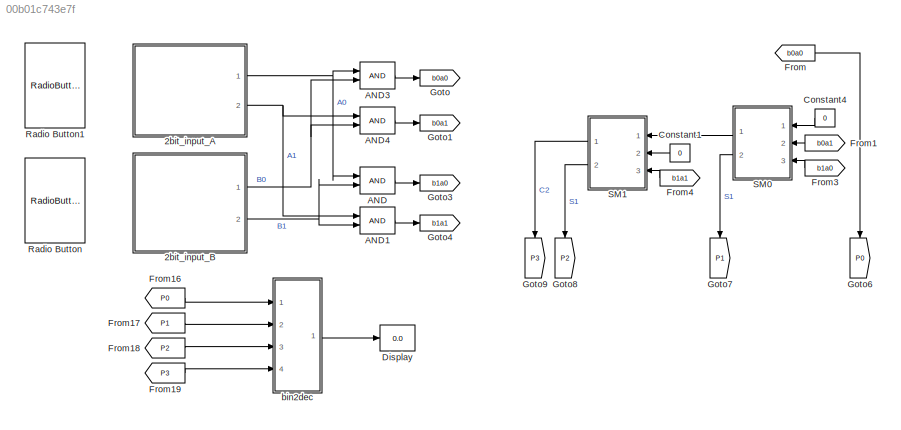
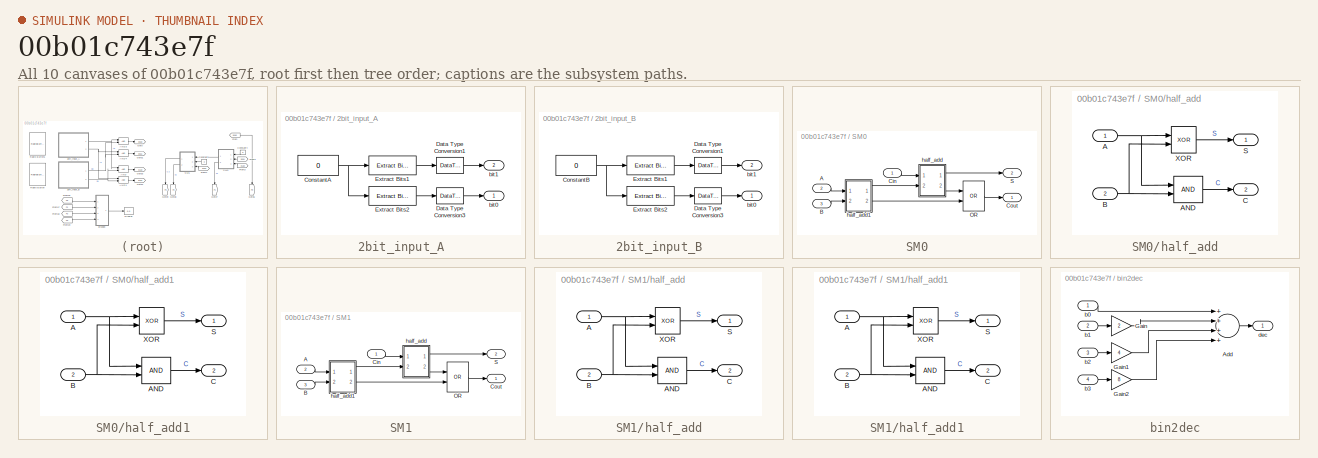
[diagram: thumbnail index - all 10 canvases of the model, root first then tree order]
MODEL slx_00b01c743e7f
KIND model
CONFIG AbsTol = auto
CONFIG EnableMultiTasking = off
CONFIG FixedStep = 1
CONFIG MaxStep = 1
CONFIG MinStep = auto
CONFIG RelTol = 1e-3
CONFIG SampleTimeConstraint = Unconstrained
CONFIG Solver = FixedStepAuto
CONFIG SolverName = FixedStepAuto
CONFIG StartTime = 0.0
CONFIG StopTime = inf
BLOCK [SubSystem] 2bit_input_A
  Ports = [0, 2]
  RequestExecContextInheritance = off
BLOCK [Constant] 2bit_input_A/ConstantA
  OutDataTypeStr = uint8
  OutMax = 3
  OutMin = 0
  Value = 0
BLOCK [DataTypeConversion] 2bit_input_A/Data Type Conversion1
  OutDataTypeStr = boolean
  RndMeth = Floor
  SaturateOnIntegerOverflow = off
BLOCK [DataTypeConversion] 2bit_input_A/Data Type Conversion3
  OutDataTypeStr = boolean
  RndMeth = Floor
  SaturateOnIntegerOverflow = off
BLOCK [Reference] 2bit_input_A/Extract Bits1  REF=simulink/Logic and Bit
Operations/Extract Bits
  Ports = [1, 1]
  SourceBlock = simulink/Logic and Bit\nOperations/Extract Bits
  SourceProductBaseCode = SL
  SourceProductName = Simulink
  SourceType = Extract Bits
BLOCK [Reference] 2bit_input_A/Extract Bits2  REF=simulink/Logic and Bit
Operations/Extract Bits
  Ports = [1, 1]
  SourceBlock = simulink/Logic and Bit\nOperations/Extract Bits
  SourceProductBaseCode = SL
  SourceProductName = Simulink
  SourceType = Extract Bits
BLOCK [Outport] 2bit_input_A/bit0
  IconDisplay = Port number
BLOCK [Outport] 2bit_input_A/bit1
  IconDisplay = Port number
  Port = 2
BLOCK [SubSystem] 2bit_input_B
  Ports = [0, 2]
  RequestExecContextInheritance = off
BLOCK [Constant] 2bit_input_B/ConstantB
  OutDataTypeStr = uint8
  OutMax = 3
  OutMin = 0
  Value = 0
BLOCK [DataTypeConversion] 2bit_input_B/Data Type Conversion1
  OutDataTypeStr = boolean
  RndMeth = Floor
  SaturateOnIntegerOverflow = off
BLOCK [DataTypeConversion] 2bit_input_B/Data Type Conversion3
  OutDataTypeStr = boolean
  RndMeth = Floor
  SaturateOnIntegerOverflow = off
BLOCK [Reference] 2bit_input_B/Extract Bits1  REF=simulink/Logic and Bit
Operations/Extract Bits
  Ports = [1, 1]
  SourceBlock = simulink/Logic and Bit\nOperations/Extract Bits
  SourceProductBaseCode = SL
  SourceProductName = Simulink
  SourceType = Extract Bits
BLOCK [Reference] 2bit_input_B/Extract Bits2  REF=simulink/Logic and Bit
Operations/Extract Bits
  Ports = [1, 1]
  SourceBlock = simulink/Logic and Bit\nOperations/Extract Bits
  SourceProductBaseCode = SL
  SourceProductName = Simulink
  SourceType = Extract Bits
BLOCK [Outport] 2bit_input_B/bit0
  IconDisplay = Port number
BLOCK [Outport] 2bit_input_B/bit1
  IconDisplay = Port number
  Port = 2
BLOCK [Logic] AND
  AllPortsSameDT = off
  OutDataTypeStr = boolean
  Ports = [2, 1]
BLOCK [Logic] AND1
  AllPortsSameDT = off
  OutDataTypeStr = boolean
  Ports = [2, 1]
BLOCK [Logic] AND3
  AllPortsSameDT = off
  OutDataTypeStr = boolean
  Ports = [2, 1]
BLOCK [Logic] AND4
  AllPortsSameDT = off
  OutDataTypeStr = boolean
  Ports = [2, 1]
BLOCK [Constant] Constant1
  OutDataTypeStr = boolean
  Value = 0
BLOCK [Constant] Constant4
  OutDataTypeStr = boolean
  Value = 0
BLOCK [Display] Display
  Decimation = 1
  Ports = [1]
BLOCK [From] From
  GotoTag = b0a0
BLOCK [From] From1
  GotoTag = b0a1
BLOCK [From] From16
  GotoTag = P0
BLOCK [From] From17
  GotoTag = P1
BLOCK [From] From18
  GotoTag = P2
BLOCK [From] From19
  GotoTag = P3
BLOCK [From] From3
  GotoTag = b1a0
BLOCK [From] From4
  GotoTag = b1a1
BLOCK [Goto] Goto
  GotoTag = b0a0
BLOCK [Goto] Goto1
  GotoTag = b0a1
BLOCK [Goto] Goto3
  GotoTag = b1a0
BLOCK [Goto] Goto4
  GotoTag = b1a1
BLOCK [Goto] Goto6
  GotoTag = P0
BLOCK [Goto] Goto7
  GotoTag = P1
BLOCK [Goto] Goto8
  GotoTag = P2
BLOCK [Goto] Goto9
  GotoTag = P3
BLOCK [RadioButtonGroup] Radio Button
  SelectedLabel = 0
BLOCK [RadioButtonGroup] Radio Button1
  SelectedLabel = 0
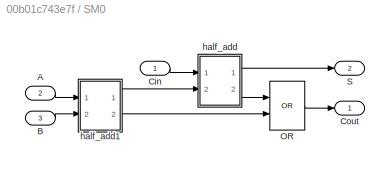
BLOCK [SubSystem] SM0
  Ports = [3, 2]
  RequestExecContextInheritance = off
BLOCK [Inport] SM0/A
  IconDisplay = Port number
  Port = 2
BLOCK [Inport] SM0/B
  IconDisplay = Port number
  Port = 3
BLOCK [Inport] SM0/Cin
  IconDisplay = Port number
BLOCK [Outport] SM0/Cout
  IconDisplay = Port number
BLOCK [Logic] SM0/OR
  AllPortsSameDT = off
  Operator = OR
  OutDataTypeStr = boolean
  Ports = [2, 1]
BLOCK [Outport] SM0/S
  IconDisplay = Port number
  Port = 2
BLOCK [SubSystem] SM0/half_add
  Ports = [2, 2]
  RequestExecContextInheritance = off
BLOCK [Inport] SM0/half_add/A
  IconDisplay = Port number
BLOCK [Logic] SM0/half_add/AND
  AllPortsSameDT = off
  IconShape = distinctive
  OutDataTypeStr = boolean
  Ports = [2, 1]
BLOCK [Inport] SM0/half_add/B
  IconDisplay = Port number
  Port = 2
BLOCK [Outport] SM0/half_add/C
  IconDisplay = Port number
  Port = 2
BLOCK [Outport] SM0/half_add/S
  IconDisplay = Port number
BLOCK [Logic] SM0/half_add/XOR
  AllPortsSameDT = off
  IconShape = distinctive
  Operator = XOR
  OutDataTypeStr = boolean
  Ports = [2, 1]
BLOCK [SubSystem] SM0/half_add1
  Ports = [2, 2]
  RequestExecContextInheritance = off
BLOCK [Inport] SM0/half_add1/A
  IconDisplay = Port number
BLOCK [Logic] SM0/half_add1/AND
  AllPortsSameDT = off
  IconShape = distinctive
  OutDataTypeStr = boolean
  Ports = [2, 1]
BLOCK [Inport] SM0/half_add1/B
  IconDisplay = Port number
  Port = 2
BLOCK [Outport] SM0/half_add1/C
  IconDisplay = Port number
  Port = 2
BLOCK [Outport] SM0/half_add1/S
  IconDisplay = Port number
BLOCK [Logic] SM0/half_add1/XOR
  AllPortsSameDT = off
  IconShape = distinctive
  Operator = XOR
  OutDataTypeStr = boolean
  Ports = [2, 1]
BLOCK [SubSystem] SM1
  Ports = [3, 2]
  RequestExecContextInheritance = off
BLOCK [Inport] SM1/A
  IconDisplay = Port number
  Port = 2
BLOCK [Inport] SM1/B
  IconDisplay = Port number
  Port = 3
BLOCK [Inport] SM1/Cin
  IconDisplay = Port number
BLOCK [Outport] SM1/Cout
  IconDisplay = Port number
BLOCK [Logic] SM1/OR
  AllPortsSameDT = off
  Operator = OR
  OutDataTypeStr = boolean
  Ports = [2, 1]
BLOCK [Outport] SM1/S
  IconDisplay = Port number
  Port = 2
BLOCK [SubSystem] SM1/half_add
  Ports = [2, 2]
  RequestExecContextInheritance = off
BLOCK [Inport] SM1/half_add/A
  IconDisplay = Port number
BLOCK [Logic] SM1/half_add/AND
  AllPortsSameDT = off
  IconShape = distinctive
  OutDataTypeStr = boolean
  Ports = [2, 1]
BLOCK [Inport] SM1/half_add/B
  IconDisplay = Port number
  Port = 2
BLOCK [Outport] SM1/half_add/C
  IconDisplay = Port number
  Port = 2
BLOCK [Outport] SM1/half_add/S
  IconDisplay = Port number
BLOCK [Logic] SM1/half_add/XOR
  AllPortsSameDT = off
  IconShape = distinctive
  Operator = XOR
  OutDataTypeStr = boolean
  Ports = [2, 1]
BLOCK [SubSystem] SM1/half_add1
  Ports = [2, 2]
  RequestExecContextInheritance = off
BLOCK [Inport] SM1/half_add1/A
  IconDisplay = Port number
BLOCK [Logic] SM1/half_add1/AND
  AllPortsSameDT = off
  IconShape = distinctive
  OutDataTypeStr = boolean
  Ports = [2, 1]
BLOCK [Inport] SM1/half_add1/B
  IconDisplay = Port number
  Port = 2
BLOCK [Outport] SM1/half_add1/C
  IconDisplay = Port number
  Port = 2
BLOCK [Outport] SM1/half_add1/S
  IconDisplay = Port number
BLOCK [Logic] SM1/half_add1/XOR
  AllPortsSameDT = off
  IconShape = distinctive
  Operator = XOR
  OutDataTypeStr = boolean
  Ports = [2, 1]
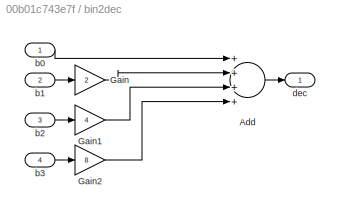
BLOCK [SubSystem] bin2dec
  Ports = [4, 1]
  RequestExecContextInheritance = off
BLOCK [Sum] bin2dec/Add
  InputSameDT = off
  Inputs = ++++
  OutDataTypeStr = Inherit: Inherit via internal rule
  Ports = [4, 1]
  SaturateOnIntegerOverflow = off
BLOCK [Gain] bin2dec/Gain
  Gain = 2
  OutDataTypeStr = Inherit: Inherit via internal rule
  ParamDataTypeStr = Inherit: Inherit via internal rule
  SaturateOnIntegerOverflow = off
BLOCK [Gain] bin2dec/Gain1
  Gain = 4
  OutDataTypeStr = Inherit: Inherit via internal rule
  ParamDataTypeStr = Inherit: Inherit via internal rule
  SaturateOnIntegerOverflow = off
BLOCK [Gain] bin2dec/Gain2
  Gain = 8
  OutDataTypeStr = Inherit: Inherit via internal rule
  ParamDataTypeStr = Inherit: Inherit via internal rule
  SaturateOnIntegerOverflow = off
BLOCK [Inport] bin2dec/b0
  IconDisplay = Port number
BLOCK [Inport] bin2dec/b1
  IconDisplay = Port number
  Port = 2
BLOCK [Inport] bin2dec/b2
  IconDisplay = Port number
  Port = 3
BLOCK [Inport] bin2dec/b3
  IconDisplay = Port number
  Port = 4
BLOCK [Outport] bin2dec/dec
  IconDisplay = Port number
NET 2bit_input_A/ConstantA:1 -> 2bit_input_A/Extract Bits1:1, 2bit_input_A/Extract Bits2:1
LINE 2bit_input_A/Data Type Conversion1:1 -> 2bit_input_A/bit1:1
LINE 2bit_input_A/Data Type Conversion3:1 -> 2bit_input_A/bit0:1
LINE 2bit_input_A/Extract Bits1:1 -> 2bit_input_A/Data Type Conversion1:1
LINE 2bit_input_A/Extract Bits2:1 -> 2bit_input_A/Data Type Conversion3:1
NET 2bit_input_A:1 -> AND3:1, AND:1
NET 2bit_input_A:2 -> AND1:1, AND4:1
NET 2bit_input_B/ConstantB:1 -> 2bit_input_B/Extract Bits1:1, 2bit_input_B/Extract Bits2:1
LINE 2bit_input_B/Data Type Conversion1:1 -> 2bit_input_B/bit1:1
LINE 2bit_input_B/Data Type Conversion3:1 -> 2bit_input_B/bit0:1
LINE 2bit_input_B/Extract Bits1:1 -> 2bit_input_B/Data Type Conversion1:1
LINE 2bit_input_B/Extract Bits2:1 -> 2bit_input_B/Data Type Conversion3:1
NET 2bit_input_B:1 -> AND3:2, AND4:2
NET 2bit_input_B:2 -> AND1:2, AND:2
LINE AND1:1 -> Goto4:1
LINE AND3:1 -> Goto:1
LINE AND4:1 -> Goto1:1
LINE AND:1 -> Goto3:1
LINE Constant1:1 -> SM1:2
LINE Constant4:1 -> SM0:1
LINE From16:1 -> bin2dec:1
LINE From17:1 -> bin2dec:2
LINE From18:1 -> bin2dec:3
LINE From19:1 -> bin2dec:4
LINE From1:1 -> SM0:2
LINE From3:1 -> SM0:3
LINE From4:1 -> SM1:3
LINE From:1 -> Goto6:1
LINE SM0/A:1 -> SM0/half_add1:1
LINE SM0/B:1 -> SM0/half_add1:2
LINE SM0/Cin:1 -> SM0/half_add:1
LINE SM0/OR:1 -> SM0/Cout:1
NET SM0/half_add/A:1 -> SM0/half_add/AND:1, SM0/half_add/XOR:1
LINE SM0/half_add/AND:1 -> SM0/half_add/C:1
NET SM0/half_add/B:1 -> SM0/half_add/AND:2, SM0/half_add/XOR:2
LINE SM0/half_add/XOR:1 -> SM0/half_add/S:1
NET SM0/half_add1/A:1 -> SM0/half_add1/AND:1, SM0/half_add1/XOR:1
LINE SM0/half_add1/AND:1 -> SM0/half_add1/C:1
NET SM0/half_add1/B:1 -> SM0/half_add1/AND:2, SM0/half_add1/XOR:2
LINE SM0/half_add1/XOR:1 -> SM0/half_add1/S:1
LINE SM0/half_add1:1 -> SM0/half_add:2
LINE SM0/half_add1:2 -> SM0/OR:2
LINE SM0/half_add:1 -> SM0/S:1
LINE SM0/half_add:2 -> SM0/OR:1
LINE SM0:1 -> SM1:1
LINE SM0:2 -> Goto7:1
LINE SM1/A:1 -> SM1/half_add1:1
LINE SM1/B:1 -> SM1/half_add1:2
LINE SM1/Cin:1 -> SM1/half_add:1
LINE SM1/OR:1 -> SM1/Cout:1
NET SM1/half_add/A:1 -> SM1/half_add/AND:1, SM1/half_add/XOR:1
LINE SM1/half_add/AND:1 -> SM1/half_add/C:1
NET SM1/half_add/B:1 -> SM1/half_add/AND:2, SM1/half_add/XOR:2
LINE SM1/half_add/XOR:1 -> SM1/half_add/S:1
NET SM1/half_add1/A:1 -> SM1/half_add1/AND:1, SM1/half_add1/XOR:1
LINE SM1/half_add1/AND:1 -> SM1/half_add1/C:1
NET SM1/half_add1/B:1 -> SM1/half_add1/AND:2, SM1/half_add1/XOR:2
LINE SM1/half_add1/XOR:1 -> SM1/half_add1/S:1
LINE SM1/half_add1:1 -> SM1/half_add:2
LINE SM1/half_add1:2 -> SM1/OR:2
LINE SM1/half_add:1 -> SM1/S:1
LINE SM1/half_add:2 -> SM1/OR:1
LINE SM1:1 -> Goto9:1
LINE SM1:2 -> Goto8:1
LINE bin2dec/Add:1 -> bin2dec/dec:1
LINE bin2dec/Gain1:1 -> bin2dec/Add:3
LINE bin2dec/Gain2:1 -> bin2dec/Add:4
LINE bin2dec/Gain:1 -> bin2dec/Add:2
LINE bin2dec/b0:1 -> bin2dec/Add:1
LINE bin2dec/b1:1 -> bin2dec/Gain:1
LINE bin2dec/b2:1 -> bin2dec/Gain1:1
LINE bin2dec/b3:1 -> bin2dec/Gain2:1
LINE bin2dec:1 -> Display:1
note: NET lines group one-source signal fan-out (src -> all destinations, sorted); 1:1 wires keep LINE
